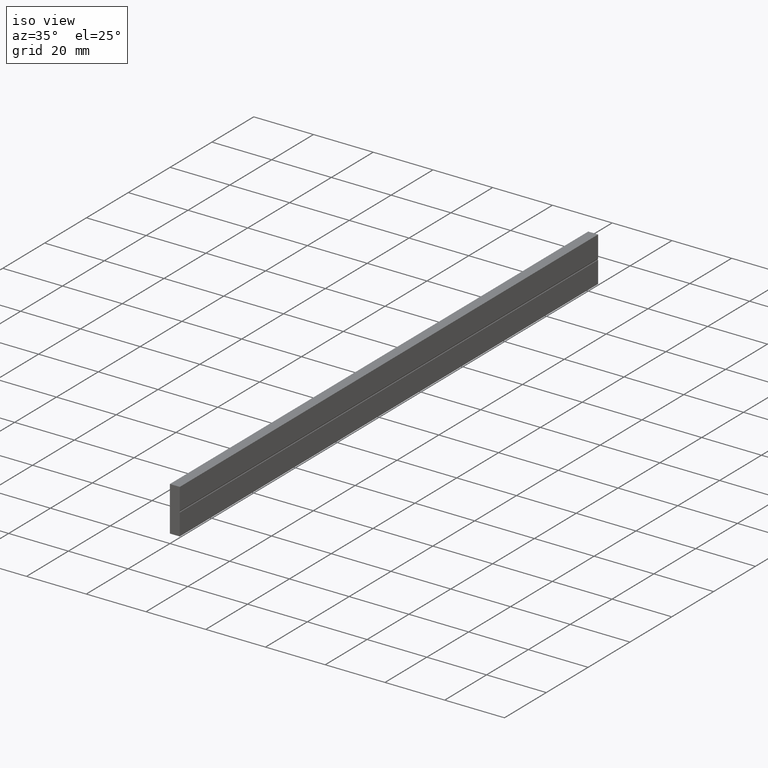
[diagram: clean part render]
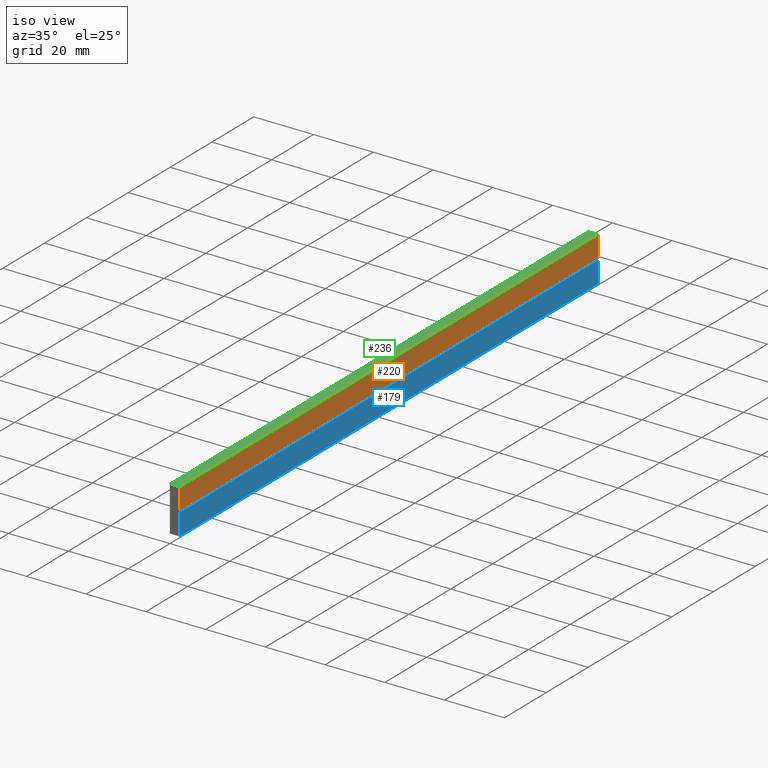
[diagram: same view with three faces highlighted in distinct colors, each labeled with its STEP entity id]
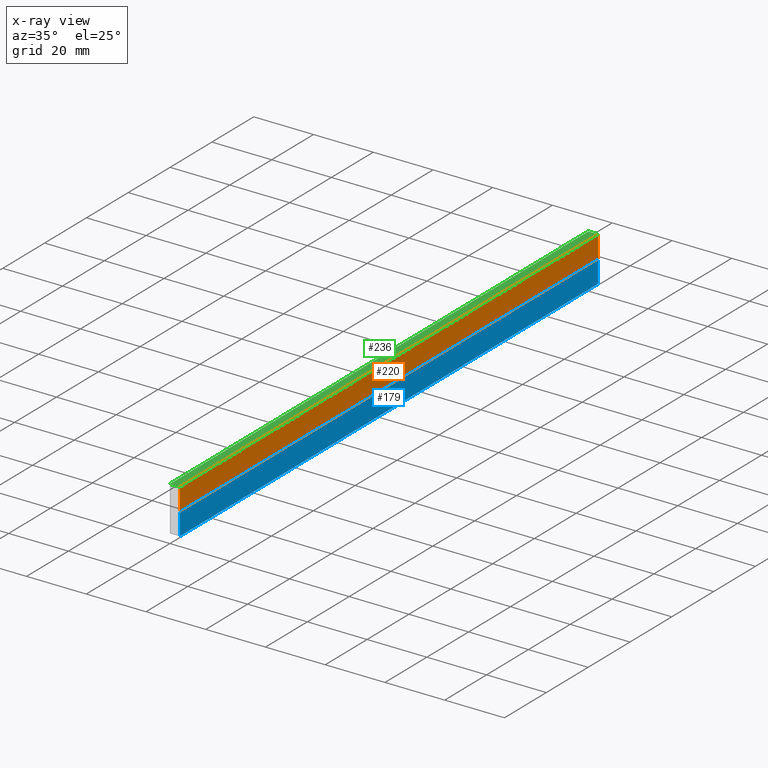
[diagram: x-ray of the same camera — body ghosted, the three highlighted faces saturated]
A machine part, iso view with three faces highlighted in distinct colors.
The next image is the same camera in x-ray (body ghosted, the three faces saturated) — at least one of them is partly hidden behind the body in this view.
Their STEP definitions:

[orange] entity #220 — the highlighted face is a freeform B-spline surface patch.
#65=CARTESIAN_POINT('',(3.300000000000070,0.0,7.749999999918600));
#66=VERTEX_POINT('',#65);
#80=CARTESIAN_POINT('',(3.300000000000070,0.0,15.0));
#81=VERTEX_POINT('',#80);
#82=CARTESIAN_POINT('',(3.300000000000070,0.0,15.0));
#83=CARTESIAN_POINT('',(3.300000000000070,0.0,7.749999999918600));
#84=QUASI_UNIFORM_CURVE('',1,(#82,#83),.UNSPECIFIED.,.F.,.U.);
#85=EDGE_CURVE('',#81,#66,#84,.T.);
#123=CARTESIAN_POINT('',(3.300000000000070,200.0,15.0));
#124=VERTEX_POINT('',#123);
#130=CARTESIAN_POINT('',(3.300000000000070,200.0,7.749999999918600));
#131=VERTEX_POINT('',#130);
#132=CARTESIAN_POINT('',(3.300000000000070,200.0,15.0));
#133=CARTESIAN_POINT('',(3.300000000000070,200.0,7.749999999918600));
#134=QUASI_UNIFORM_CURVE('',1,(#132,#133),.UNSPECIFIED.,.F.,.U.);
#135=EDGE_CURVE('',#124,#131,#134,.T.);
#197=CARTESIAN_POINT('',(3.300000000000070,200.0,7.749999999918600));
#198=CARTESIAN_POINT('',(3.300000000000070,0.0,7.749999999918600));
#199=QUASI_UNIFORM_CURVE('',1,(#197,#198),.UNSPECIFIED.,.F.,.U.);
#200=EDGE_CURVE('',#131,#66,#199,.T.);
#205=CARTESIAN_POINT('',(3.300000000000070,-9.989999612361171,7.387862513966441));
#206=CARTESIAN_POINT('',(3.300000000000070,-9.989999612361171,15.362137680412310));
#207=CARTESIAN_POINT('',(3.300000000000070,209.990004976779200,7.387862513966441));
#208=CARTESIAN_POINT('',(3.300000000000070,209.990004976779200,15.362137680412310));
#209=B_SPLINE_SURFACE_WITH_KNOTS('',1,1,((#205,#207),(#206,#208)),.UNSPECIFIED.,.F.,.F.,.U.,(2,2),(2,2),(0.0,7.974275166445874),(0.0,219.980004589140410),.UNSPECIFIED.);
#210=ORIENTED_EDGE('',*,*,#85,.T.);
#211=ORIENTED_EDGE('',*,*,#200,.F.);
#212=ORIENTED_EDGE('',*,*,#135,.F.);
#213=CARTESIAN_POINT('',(3.300000000000070,200.0,15.0));
#214=CARTESIAN_POINT('',(3.300000000000070,0.0,15.0));
#215=QUASI_UNIFORM_CURVE('',1,(#213,#214),.UNSPECIFIED.,.F.,.U.);
#216=EDGE_CURVE('',#124,#81,#215,.T.);
#217=ORIENTED_EDGE('',*,*,#216,.T.);
#218=EDGE_LOOP('',(#210,#211,#212,#217));
#219=FACE_OUTER_BOUND('',#218,.T.);
#220=ADVANCED_FACE('',(#219),#209,.F.);

[blue] entity #179 — the highlighted face is a freeform B-spline surface patch.
#49=CARTESIAN_POINT('',(3.300000000000070,0.0,0.0));
#50=VERTEX_POINT('',#49);
#58=CARTESIAN_POINT('',(3.300000000000035,0.0,7.249999999918600));
#59=VERTEX_POINT('',#58);
#60=CARTESIAN_POINT('',(3.300000000000035,0.0,7.249999999918600));
#61=CARTESIAN_POINT('',(3.300000000000070,0.0,0.0));
#62=QUASI_UNIFORM_CURVE('',1,(#60,#61),.UNSPECIFIED.,.F.,.U.);
#63=EDGE_CURVE('',#59,#50,#62,.T.);
#107=CARTESIAN_POINT('',(3.300000000000070,200.0,0.0));
#108=VERTEX_POINT('',#107);
#137=CARTESIAN_POINT('',(3.300000000000035,200.0,7.249999999918600));
#138=VERTEX_POINT('',#137);
#152=CARTESIAN_POINT('',(3.300000000000035,200.0,7.249999999918600));
#153=CARTESIAN_POINT('',(3.300000000000070,200.0,0.0));
#154=QUASI_UNIFORM_CURVE('',1,(#152,#153),.UNSPECIFIED.,.F.,.U.);
#155=EDGE_CURVE('',#138,#108,#154,.T.);
#160=CARTESIAN_POINT('',(3.300000000000070,-9.989999612361194,-0.362137485944028));
#161=CARTESIAN_POINT('',(3.300000000000070,-9.989999612361194,7.612137680322782));
#162=CARTESIAN_POINT('',(3.300000000000070,209.990004976779200,-0.362137485944028));
#163=CARTESIAN_POINT('',(3.300000000000070,209.990004976779200,7.612137680322782));
#164=B_SPLINE_SURFACE_WITH_KNOTS('',1,1,((#160,#162),(#161,#163)),.UNSPECIFIED.,.F.,.F.,.U.,(2,2),(2,2),(0.0,7.974275166266810),(0.0,219.980004589140410),.UNSPECIFIED.);
#165=ORIENTED_EDGE('',*,*,#63,.T.);
#166=CARTESIAN_POINT('',(3.300000000000070,200.0,0.0));
#167=CARTESIAN_POINT('',(3.300000000000070,0.0,0.0));
#168=QUASI_UNIFORM_CURVE('',1,(#166,#167),.UNSPECIFIED.,.F.,.U.);
#169=EDGE_CURVE('',#108,#50,#168,.T.);
#170=ORIENTED_EDGE('',*,*,#169,.F.);
#171=ORIENTED_EDGE('',*,*,#155,.F.);
#172=CARTESIAN_POINT('',(3.300000000000035,200.0,7.249999999918600));
#173=CARTESIAN_POINT('',(3.300000000000035,0.0,7.249999999918600));
#174=QUASI_UNIFORM_CURVE('',1,(#172,#173),.UNSPECIFIED.,.F.,.U.);
#175=EDGE_CURVE('',#138,#59,#174,.T.);
#176=ORIENTED_EDGE('',*,*,#175,.T.);
#177=EDGE_LOOP('',(#165,#170,#171,#176));
#178=FACE_OUTER_BOUND('',#177,.T.);
#179=ADVANCED_FACE('',(#178),#164,.F.);

[green] entity #236 — the highlighted face is a freeform B-spline surface patch.
#80=CARTESIAN_POINT('',(3.300000000000070,0.0,15.0));
#81=VERTEX_POINT('',#80);
#87=CARTESIAN_POINT('',(4.973799E-014,0.0,15.0));
#88=VERTEX_POINT('',#87);
#89=CARTESIAN_POINT('',(4.973799E-014,0.0,15.0));
#90=CARTESIAN_POINT('',(3.300000000000070,0.0,15.0));
#91=QUASI_UNIFORM_CURVE('',1,(#89,#90),.UNSPECIFIED.,.F.,.U.);
#92=EDGE_CURVE('',#88,#81,#91,.T.);
#116=CARTESIAN_POINT('',(4.973799E-014,200.0,15.0));
#117=VERTEX_POINT('',#116);
#123=CARTESIAN_POINT('',(3.300000000000070,200.0,15.0));
#124=VERTEX_POINT('',#123);
#125=CARTESIAN_POINT('',(4.973799E-014,200.0,15.0));
#126=CARTESIAN_POINT('',(3.300000000000070,200.0,15.0));
#127=QUASI_UNIFORM_CURVE('',1,(#125,#126),.UNSPECIFIED.,.F.,.U.);
#128=EDGE_CURVE('',#117,#124,#127,.T.);
#213=CARTESIAN_POINT('',(3.300000000000070,200.0,15.0));
#214=CARTESIAN_POINT('',(3.300000000000070,0.0,15.0));
#215=QUASI_UNIFORM_CURVE('',1,(#213,#214),.UNSPECIFIED.,.F.,.U.);
#216=EDGE_CURVE('',#124,#81,#215,.T.);
#221=CARTESIAN_POINT('',(3.464834962625992,-9.989999612361171,15.0));
#222=CARTESIAN_POINT('',(-0.164835080643068,-9.989999612361171,15.0));
#223=CARTESIAN_POINT('',(3.464834962625992,209.990004976779200,15.0));
#224=CARTESIAN_POINT('',(-0.164835080643068,209.990004976779200,15.0));
#225=B_SPLINE_SURFACE_WITH_KNOTS('',1,1,((#221,#223),(#222,#224)),.UNSPECIFIED.,.F.,.F.,.U.,(2,2),(2,2),(0.0,3.629670043269060),(0.0,219.980004589140410),.UNSPECIFIED.);
#226=ORIENTED_EDGE('',*,*,#92,.T.);
#227=ORIENTED_EDGE('',*,*,#216,.F.);
#228=ORIENTED_EDGE('',*,*,#128,.F.);
#229=CARTESIAN_POINT('',(4.973799E-014,200.0,15.0));
#230=CARTESIAN_POINT('',(4.973799E-014,0.0,15.0));
#231=QUASI_UNIFORM_CURVE('',1,(#229,#230),.UNSPECIFIED.,.F.,.U.);
#232=EDGE_CURVE('',#117,#88,#231,.T.);
#233=ORIENTED_EDGE('',*,*,#232,.T.);
#234=EDGE_LOOP('',(#226,#227,#228,#233));
#235=FACE_OUTER_BOUND('',#234,.T.);
#236=ADVANCED_FACE('',(#235),#225,.F.);